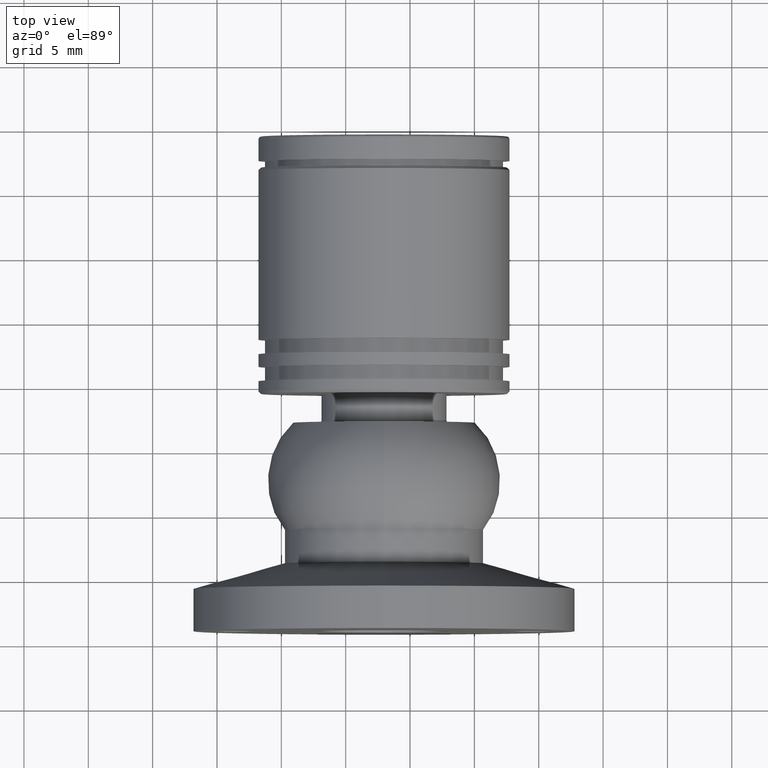
[diagram: clean part render]
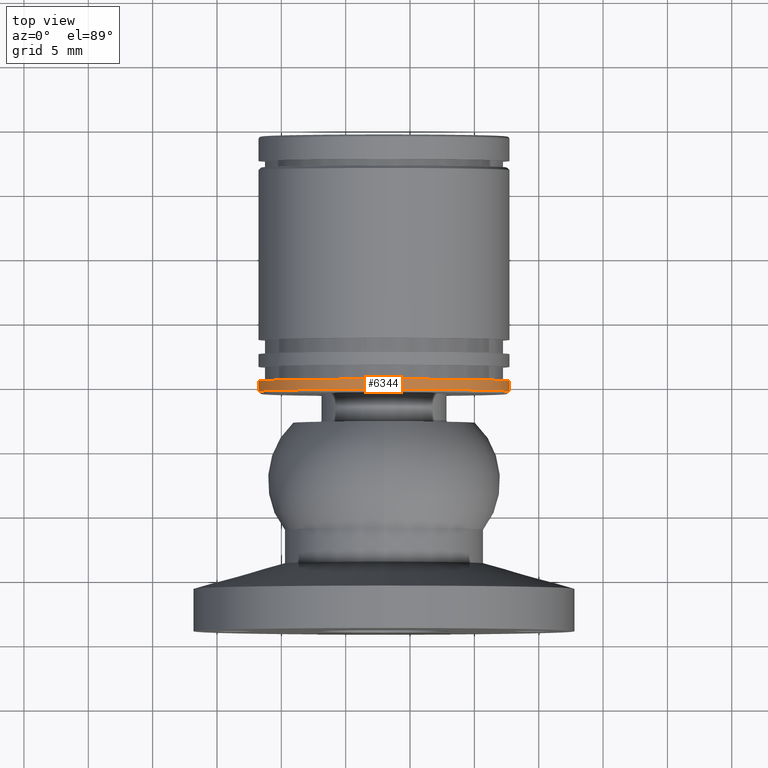
[diagram: same view with one face highlighted and labeled with its STEP entity id]
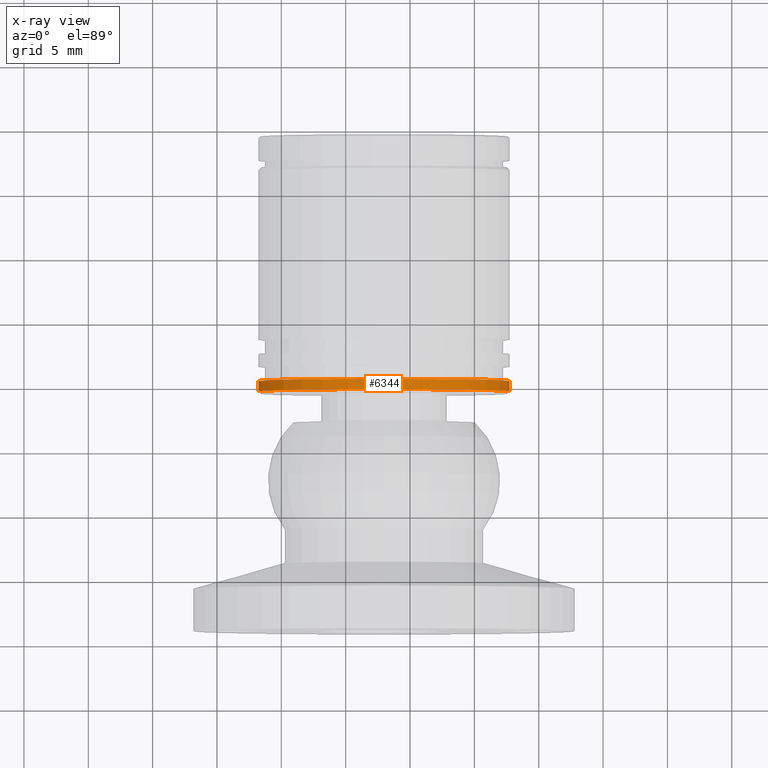
[diagram: x-ray of the same camera — body ghosted, the highlighted face saturated]
A machine part, top view. The second image highlights one B-rep face of the part: STEP entity #6344.
The next image is the same camera in x-ray: the body ghosted, the highlighted face saturated — about 0% of this face is hidden behind the body in this view.
In plain terms, the highlighted cylindrical surface (partial cylindrical patch) has radius 9.75 mm, axis along (0, -1, 0).
Its self-contained STEP definition (entity closure, byte-faithful):
#199 = CARTESIAN_POINT ( 'NONE',  ( -5.328594047544070243E-15, 5.969343979161417124, 0.000000000000000000 ) ) ;
#593 = AXIS2_PLACEMENT_3D ( 'NONE', #3792, #8120, #3722 ) ;
#1274 = VECTOR ( 'NONE', #6877, 1000.000000000000000 ) ;
#1401 = EDGE_LOOP ( 'NONE', ( #8513, #2300, #7782, #2686 ) ) ;
#1800 = CARTESIAN_POINT ( 'NONE',  ( -9.750000000000010658, 7.106205598714073854E-15, 1.194030629168670061E-15 ) ) ;
#2165 = DIRECTION ( 'NONE',  ( -7.981960134060291135E-20, -1.000000000000000000, -0.000000000000000000 ) ) ;
#2168 = CARTESIAN_POINT ( 'NONE',  ( 9.750000000000000000, 7.104649116487930652E-15, 0.000000000000000000 ) ) ;
#2300 = ORIENTED_EDGE ( 'NONE', *, *, #3012, .T. ) ;
#2686 = ORIENTED_EDGE ( 'NONE', *, *, #7124, .F. ) ;
#3012 = EDGE_CURVE ( 'NONE', #6596, #7755, #3022, .T. ) ;
#3022 = LINE ( 'NONE', #1800, #1274 ) ;
#3310 = VERTEX_POINT ( 'NONE', #6682 ) ;
#3487 = DIRECTION ( 'NONE',  ( 1.000000000000000000, -7.981960134067063186E-20, 0.000000000000000000 ) ) ;
#3522 = CIRCLE ( 'NONE', #593, 9.750000000000005329 ) ;
#3722 = DIRECTION ( 'NONE',  ( 1.000000000000000000, 0.000000000000000000, 0.000000000000000000 ) ) ;
#3778 = VECTOR ( 'NONE', #4397, 1000.000000000000000 ) ;
#3792 = CARTESIAN_POINT ( 'NONE',  ( -5.328530191862997378E-15, 6.769343979161420499, 0.000000000000000000 ) ) ;
#4397 = DIRECTION ( 'NONE',  ( -7.981960134060291135E-20, -1.000000000000000000, -0.000000000000000000 ) ) ;
#5063 = CARTESIAN_POINT ( 'NONE',  ( -9.750000000000010658, 6.769343979161420499, 1.194030629168670061E-15 ) ) ;
#5183 = CARTESIAN_POINT ( 'NONE',  ( 9.750000000000000000, 6.769343979161420499, 0.000000000000000000 ) ) ;
#5469 = AXIS2_PLACEMENT_3D ( 'NONE', #6547, #2165, #3487 ) ;
#6102 = CYLINDRICAL_SURFACE ( 'NONE', #5469, 9.750000000000005329 ) ;
#6344 = ADVANCED_FACE ( 'NONE', ( #8374 ), #6102, .T. ) ;
#6547 = CARTESIAN_POINT ( 'NONE',  ( -5.329070518200751394E-15, 7.105427357601001859E-15, 0.000000000000000000 ) ) ;
#6596 = VERTEX_POINT ( 'NONE', #5063 ) ;
#6657 = VERTEX_POINT ( 'NONE', #5183 ) ;
#6682 = CARTESIAN_POINT ( 'NONE',  ( 9.750000000000000000, 5.969343979161417124, 0.000000000000000000 ) ) ;
#6877 = DIRECTION ( 'NONE',  ( -7.981960134060291135E-20, -1.000000000000000000, -0.000000000000000000 ) ) ;
#7124 = EDGE_CURVE ( 'NONE', #6657, #3310, #9276, .T. ) ;
#7486 = DIRECTION ( 'NONE',  ( 7.981960134246939024E-20, 1.000000000000000000, 0.000000000000000000 ) ) ;
#7662 = CIRCLE ( 'NONE', #8106, 9.750000000000005329 ) ;
#7755 = VERTEX_POINT ( 'NONE', #8377 ) ;
#7782 = ORIENTED_EDGE ( 'NONE', *, *, #8629, .T. ) ;
#8106 = AXIS2_PLACEMENT_3D ( 'NONE', #199, #7486, #8948 ) ;
#8120 = DIRECTION ( 'NONE',  ( -7.981960134060291135E-20, -1.000000000000000000, -0.000000000000000000 ) ) ;
#8374 = FACE_OUTER_BOUND ( 'NONE', #1401, .T. ) ;
#8377 = CARTESIAN_POINT ( 'NONE',  ( -9.750000000000010658, 5.969343979161417124, 1.194030629168670061E-15 ) ) ;
#8513 = ORIENTED_EDGE ( 'NONE', *, *, #8569, .T. ) ;
#8569 = EDGE_CURVE ( 'NONE', #6657, #6596, #3522, .T. ) ;
#8629 = EDGE_CURVE ( 'NONE', #7755, #3310, #7662, .T. ) ;
#8948 = DIRECTION ( 'NONE',  ( -1.000000000000000000, 0.000000000000000000, 0.000000000000000000 ) ) ;
#9276 = LINE ( 'NONE', #2168, #3778 ) ;